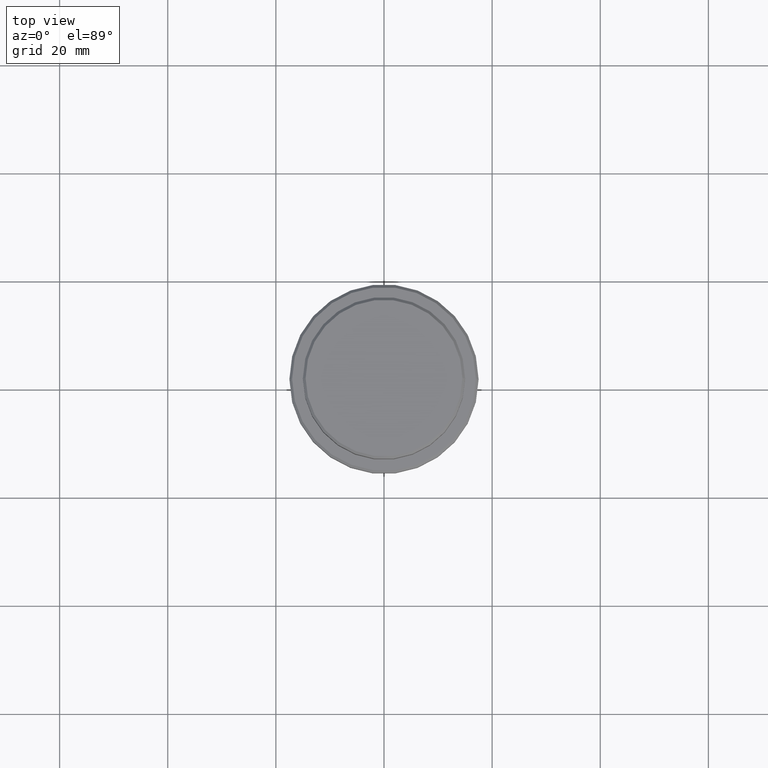
[diagram: clean part render]
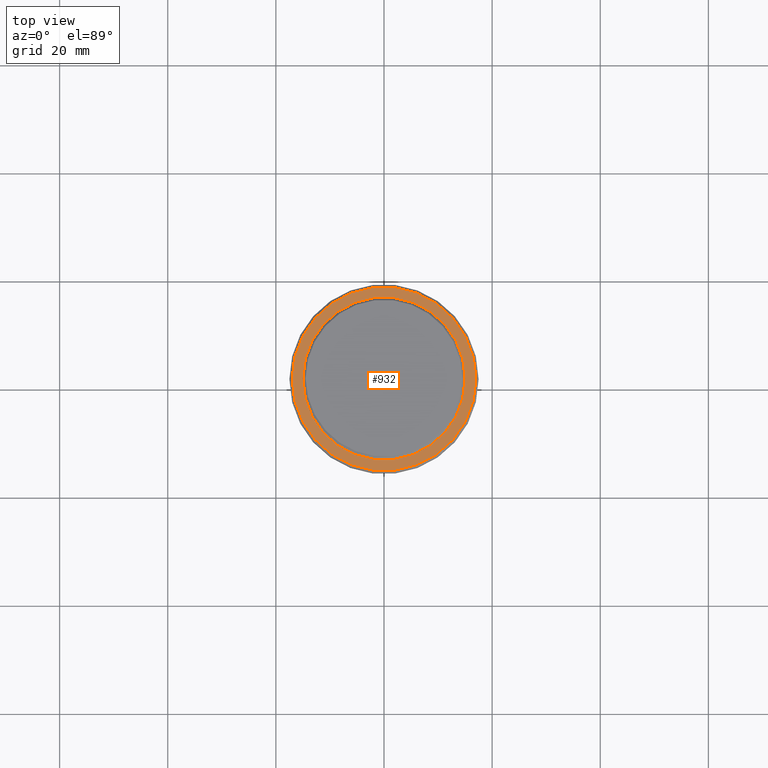
[diagram: same view with one face highlighted and labeled with its STEP entity id]
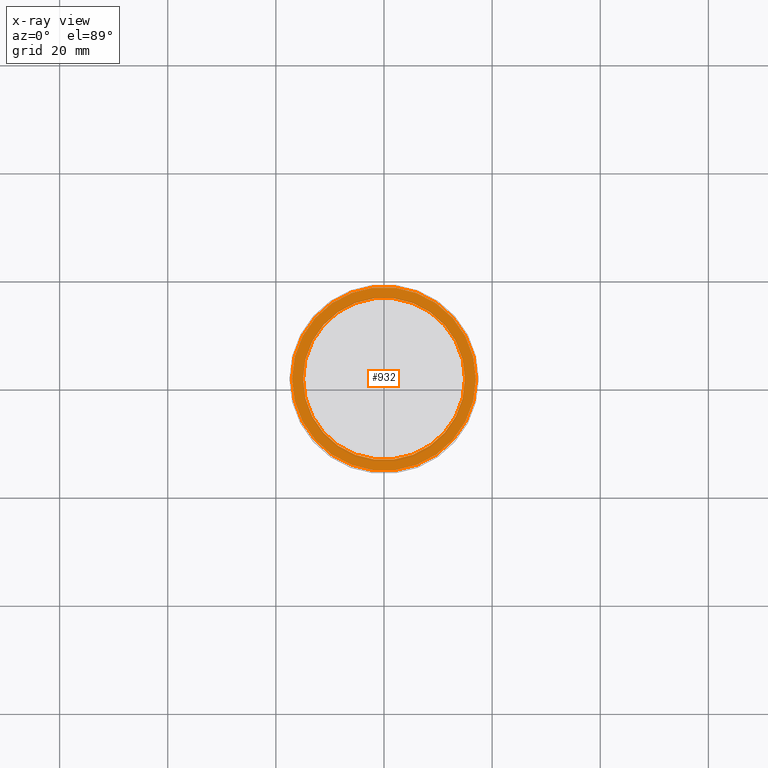
[diagram: x-ray of the same camera — body ghosted, the highlighted face saturated]
A machine part, top view. The second image highlights one B-rep face of the part: STEP entity #932.
The next image is the same camera in x-ray: the body ghosted, the highlighted face saturated — about 0% of this face is hidden behind the body in this view.
In plain terms, the highlighted planar face has unit normal (0, -0, 1).
Its self-contained STEP definition (entity closure, byte-faithful):
#2 = CARTESIAN_POINT ( 'NONE',  ( -14.99999999999999467, 1.836970198721029194E-15, -9.000000000000001776 ) ) ;
#31 = CIRCLE ( 'NONE', #1193, 14.99999999999999467 ) ;
#57 = CARTESIAN_POINT ( 'NONE',  ( 16.99999999999998579, 2.112515728529183278E-15, -9.000000000000001776 ) ) ;
#70 = DIRECTION ( 'NONE',  ( 1.000000000000000000, 0.000000000000000000, 0.000000000000000000 ) ) ;
#93 = DIRECTION ( 'NONE',  ( -0.000000000000000000, -0.000000000000000000, 1.000000000000000000 ) ) ;
#101 = VERTEX_POINT ( 'NONE', #57 ) ;
#106 = CARTESIAN_POINT ( 'NONE',  ( -16.99999999999998579, 0.000000000000000000, -9.000000000000001776 ) ) ;
#114 = FACE_OUTER_BOUND ( 'NONE', #1007, .T. ) ;
#178 = EDGE_CURVE ( 'NONE', #101, #903, #768, .T. ) ;
#183 = CARTESIAN_POINT ( 'NONE',  ( 0.000000000000000000, 0.000000000000000000, -9.000000000000001776 ) ) ;
#187 = ORIENTED_EDGE ( 'NONE', *, *, #636, .T. ) ;
#201 = VERTEX_POINT ( 'NONE', #517 ) ;
#301 = DIRECTION ( 'NONE',  ( 1.000000000000000000, 0.000000000000000000, 0.000000000000000000 ) ) ;
#338 = CARTESIAN_POINT ( 'NONE',  ( 0.000000000000000000, 14.49999999999999467, -9.000000000000001776 ) ) ;
#446 = VERTEX_POINT ( 'NONE', #2 ) ;
#517 = CARTESIAN_POINT ( 'NONE',  ( 14.99999999999999467, 0.000000000000000000, -9.000000000000001776 ) ) ;
#532 = AXIS2_PLACEMENT_3D ( 'NONE', #183, #93, #713 ) ;
#548 = FACE_BOUND ( 'NONE', #880, .T. ) ;
#586 = CIRCLE ( 'NONE', #532, 16.99999999999998579 ) ;
#625 = AXIS2_PLACEMENT_3D ( 'NONE', #1063, #1168, #301 ) ;
#636 = EDGE_CURVE ( 'NONE', #201, #446, #31, .T. ) ;
#713 = DIRECTION ( 'NONE',  ( 1.000000000000000000, 0.000000000000000000, 0.000000000000000000 ) ) ;
#755 = DIRECTION ( 'NONE',  ( 0.000000000000000000, -0.000000000000000000, 1.000000000000000000 ) ) ;
#760 = DIRECTION ( 'NONE',  ( 0.000000000000000000, 0.000000000000000000, -1.000000000000000000 ) ) ;
#768 = CIRCLE ( 'NONE', #625, 16.99999999999998579 ) ;
#778 = ORIENTED_EDGE ( 'NONE', *, *, #178, .T. ) ;
#779 = DIRECTION ( 'NONE',  ( 1.000000000000000000, 0.000000000000000000, 0.000000000000000000 ) ) ;
#820 = CIRCLE ( 'NONE', #1051, 14.99999999999999467 ) ;
#857 = DIRECTION ( 'NONE',  ( 0.000000000000000000, 0.000000000000000000, -1.000000000000000000 ) ) ;
#867 = EDGE_CURVE ( 'NONE', #446, #201, #820, .T. ) ;
#880 = EDGE_LOOP ( 'NONE', ( #187, #1107 ) ) ;
#903 = VERTEX_POINT ( 'NONE', #106 ) ;
#932 = ADVANCED_FACE ( 'NONE', ( #114, #548 ), #1316, .T. ) ;
#985 = CARTESIAN_POINT ( 'NONE',  ( 0.000000000000000000, 0.000000000000000000, -9.000000000000001776 ) ) ;
#1007 = EDGE_LOOP ( 'NONE', ( #1305, #778 ) ) ;
#1051 = AXIS2_PLACEMENT_3D ( 'NONE', #985, #760, #1092 ) ;
#1063 = CARTESIAN_POINT ( 'NONE',  ( 0.000000000000000000, 0.000000000000000000, -9.000000000000001776 ) ) ;
#1092 = DIRECTION ( 'NONE',  ( 1.000000000000000000, 0.000000000000000000, 0.000000000000000000 ) ) ;
#1107 = ORIENTED_EDGE ( 'NONE', *, *, #867, .T. ) ;
#1131 = EDGE_CURVE ( 'NONE', #903, #101, #586, .T. ) ;
#1161 = CARTESIAN_POINT ( 'NONE',  ( 0.000000000000000000, 0.000000000000000000, -9.000000000000001776 ) ) ;
#1168 = DIRECTION ( 'NONE',  ( -0.000000000000000000, -0.000000000000000000, 1.000000000000000000 ) ) ;
#1193 = AXIS2_PLACEMENT_3D ( 'NONE', #1161, #857, #70 ) ;
#1305 = ORIENTED_EDGE ( 'NONE', *, *, #1131, .T. ) ;
#1316 = PLANE ( 'NONE',  #1404 ) ;
#1404 = AXIS2_PLACEMENT_3D ( 'NONE', #338, #755, #779 ) ;